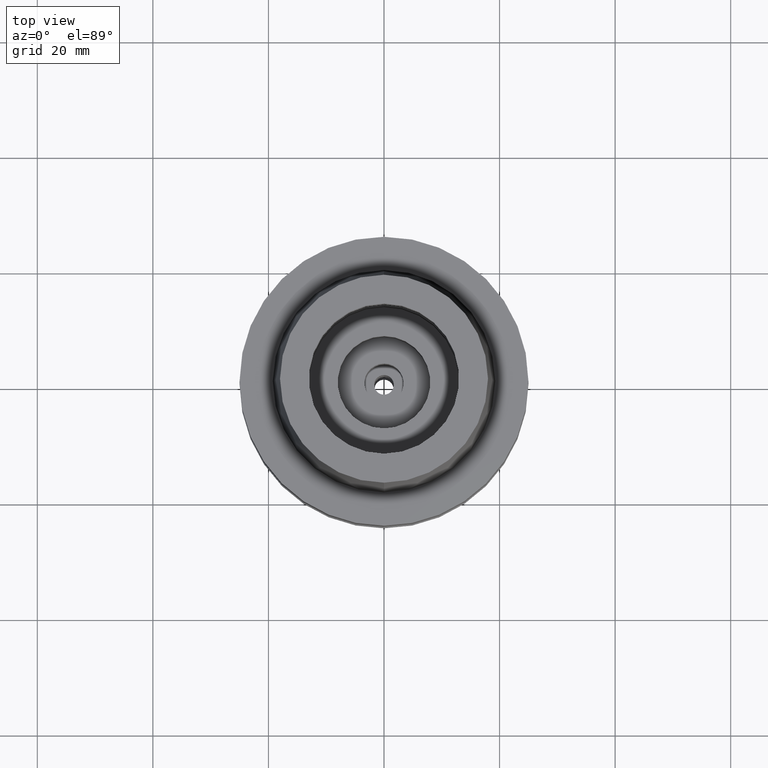
[diagram: clean part render]
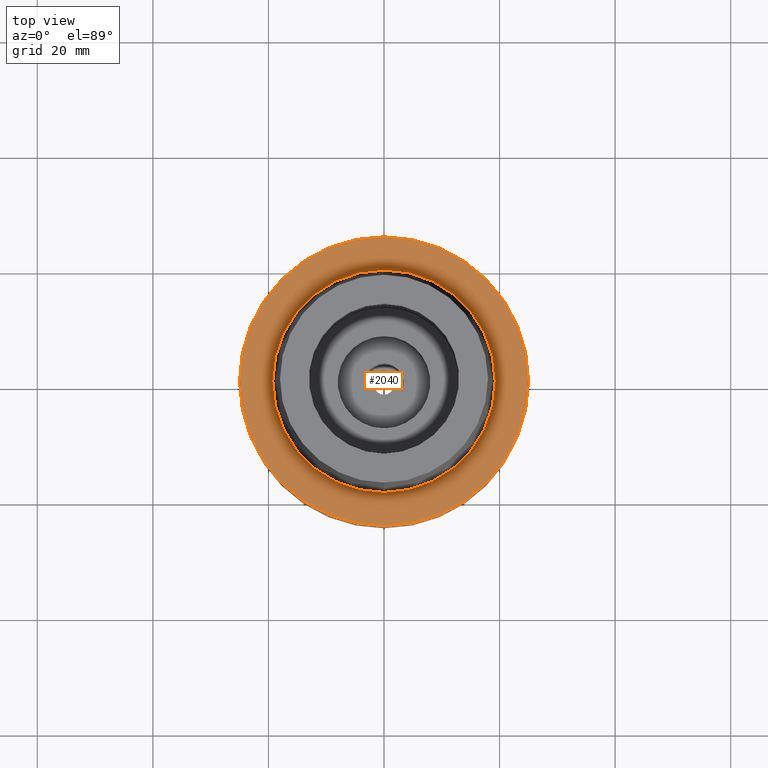
[diagram: same view with one face highlighted and labeled with its STEP entity id]
A machine part, top view. The second image highlights one B-rep face of the part: STEP entity #2040.
In plain terms, the highlighted planar face has unit normal (0, 0, -1).
Its self-contained STEP definition (entity closure, byte-faithful):
#95 = VERTEX_POINT ( 'NONE', #1853 ) ;
#97 = AXIS2_PLACEMENT_3D ( 'NONE', #1809, #1560, #964 ) ;
#106 = CIRCLE ( 'NONE', #1253, 25.00000000000000000 ) ;
#143 = EDGE_CURVE ( 'NONE', #1009, #95, #106, .T. ) ;
#203 = DIRECTION ( 'NONE',  ( 0.0000000000000000000, 1.000000000000000000, 0.0000000000000000000 ) ) ;
#373 = DIRECTION ( 'NONE',  ( 0.0000000000000000000, -1.000000000000000000, 0.0000000000000000000 ) ) ;
#416 = EDGE_CURVE ( 'NONE', #781, #2125, #1501, .T. ) ;
#505 = CIRCLE ( 'NONE', #2482, 25.00000000000000000 ) ;
#526 = PLANE ( 'NONE',  #97 ) ;
#581 = AXIS2_PLACEMENT_3D ( 'NONE', #2171, #1967, #1562 ) ;
#593 = AXIS2_PLACEMENT_3D ( 'NONE', #2262, #617, #373 ) ;
#617 = DIRECTION ( 'NONE',  ( 0.0000000000000000000, 0.0000000000000000000, 1.000000000000000000 ) ) ;
#621 = EDGE_CURVE ( 'NONE', #95, #1009, #505, .T. ) ;
#640 = CARTESIAN_POINT ( 'NONE',  ( 0.0000000000000000000, -19.24999954280000125, -1.136868377215999950E-12 ) ) ;
#721 = CARTESIAN_POINT ( 'NONE',  ( 0.0000000000000000000, 19.24999954280000125, -1.136868377215999950E-12 ) ) ;
#781 = VERTEX_POINT ( 'NONE', #640 ) ;
#855 = CARTESIAN_POINT ( 'NONE',  ( 0.0000000000000000000, 0.0000000000000000000, -4.618527782440999569E-14 ) ) ;
#858 = DIRECTION ( 'NONE',  ( 0.0000000000000000000, 0.0000000000000000000, -1.000000000000000000 ) ) ;
#868 = DIRECTION ( 'NONE',  ( 0.0000000000000000000, -1.000000000000000000, 0.0000000000000000000 ) ) ;
#899 = ORIENTED_EDGE ( 'NONE', *, *, #416, .F. ) ;
#947 = EDGE_LOOP ( 'NONE', ( #2578, #1120 ) ) ;
#964 = DIRECTION ( 'NONE',  ( 0.0000000000000000000, -1.000000000000000000, 0.0000000000000000000 ) ) ;
#1009 = VERTEX_POINT ( 'NONE', #2547 ) ;
#1120 = ORIENTED_EDGE ( 'NONE', *, *, #143, .F. ) ;
#1220 = ORIENTED_EDGE ( 'NONE', *, *, #1525, .F. ) ;
#1253 = AXIS2_PLACEMENT_3D ( 'NONE', #855, #1707, #868 ) ;
#1501 = CIRCLE ( 'NONE', #593, 19.24999954280000125 ) ;
#1525 = EDGE_CURVE ( 'NONE', #2125, #781, #1877, .T. ) ;
#1560 = DIRECTION ( 'NONE',  ( 0.0000000000000000000, 0.0000000000000000000, -1.000000000000000000 ) ) ;
#1562 = DIRECTION ( 'NONE',  ( 0.0000000000000000000, 1.000000000000000000, 0.0000000000000000000 ) ) ;
#1707 = DIRECTION ( 'NONE',  ( 0.0000000000000000000, 0.0000000000000000000, -1.000000000000000000 ) ) ;
#1766 = EDGE_LOOP ( 'NONE', ( #1220, #899 ) ) ;
#1809 = CARTESIAN_POINT ( 'NONE',  ( 0.0000000000000000000, 0.0000000000000000000, 0.0000000000000000000 ) ) ;
#1853 = CARTESIAN_POINT ( 'NONE',  ( 0.0000000000000000000, 25.00000000000000000, -3.079018521626999621E-14 ) ) ;
#1877 = CIRCLE ( 'NONE', #581, 19.24999954280000125 ) ;
#1967 = DIRECTION ( 'NONE',  ( 0.0000000000000000000, 0.0000000000000000000, 1.000000000000000000 ) ) ;
#2040 = ADVANCED_FACE ( 'NONE', ( #2377, #2210 ), #526, .F. ) ;
#2125 = VERTEX_POINT ( 'NONE', #721 ) ;
#2171 = CARTESIAN_POINT ( 'NONE',  ( 0.0000000000000000000, 0.0000000000000000000, -1.136868377215999950E-12 ) ) ;
#2210 = FACE_BOUND ( 'NONE', #1766, .T. ) ;
#2262 = CARTESIAN_POINT ( 'NONE',  ( 0.0000000000000000000, 0.0000000000000000000, -1.136868377215999950E-12 ) ) ;
#2377 = FACE_OUTER_BOUND ( 'NONE', #947, .T. ) ;
#2482 = AXIS2_PLACEMENT_3D ( 'NONE', #2672, #858, #203 ) ;
#2547 = CARTESIAN_POINT ( 'NONE',  ( 0.0000000000000000000, -25.00000000000000000, -4.618527782440999569E-14 ) ) ;
#2578 = ORIENTED_EDGE ( 'NONE', *, *, #621, .F. ) ;
#2672 = CARTESIAN_POINT ( 'NONE',  ( 0.0000000000000000000, 0.0000000000000000000, -4.618527782440999569E-14 ) ) ;